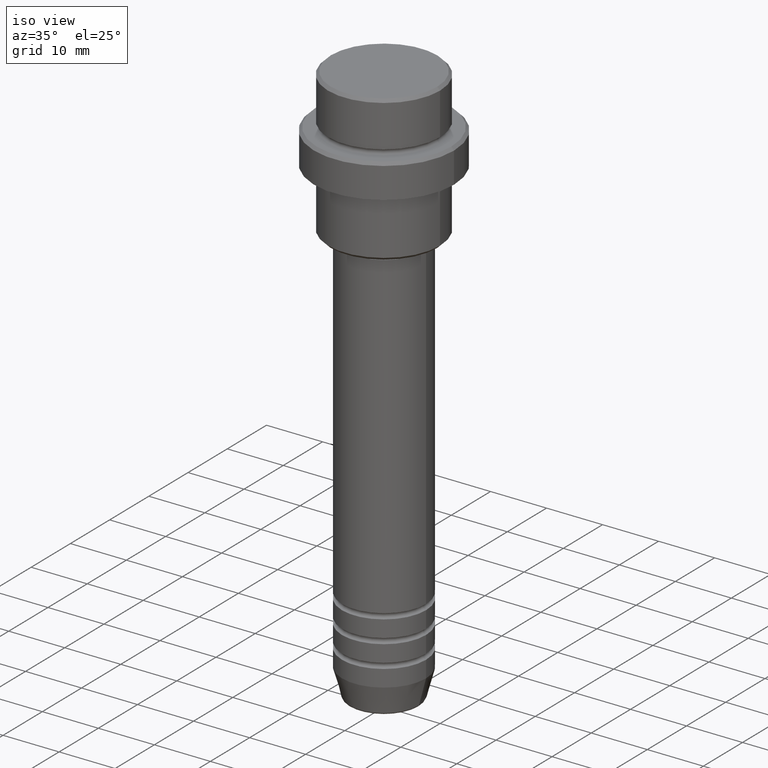
[diagram: clean part render]
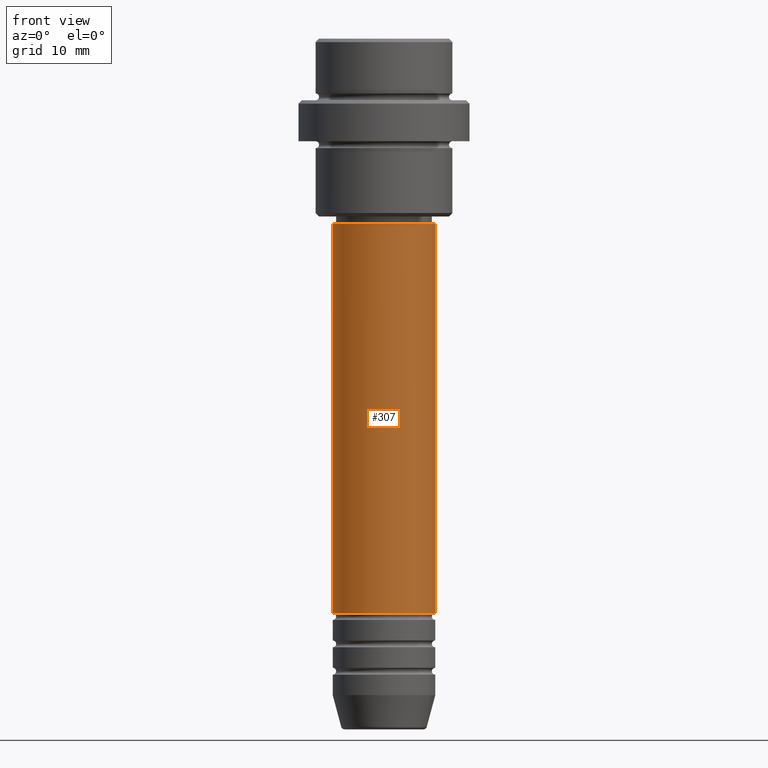
[diagram: tour spotlight — one face highlighted and labeled with its STEP entity id]
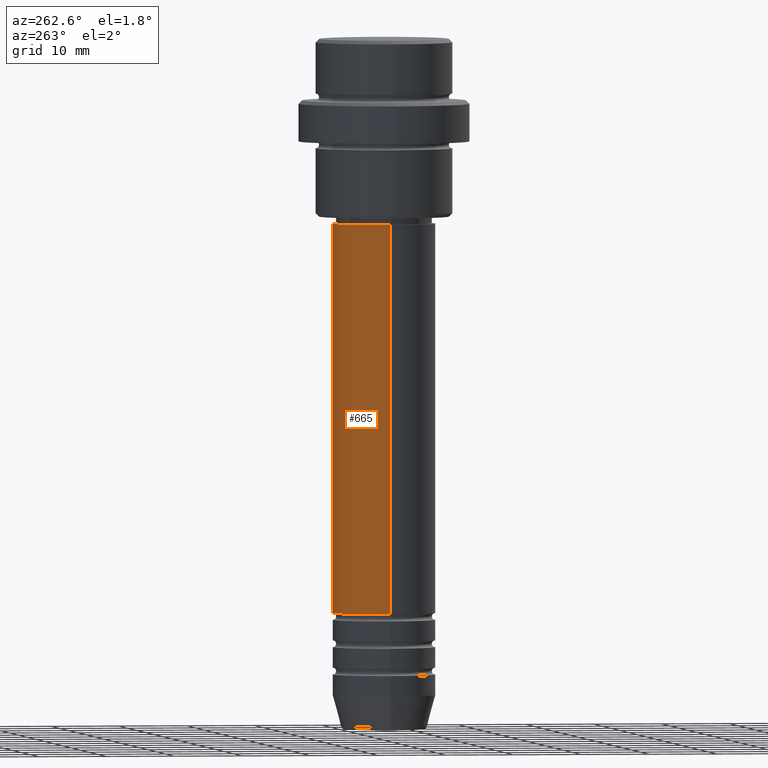
[diagram: tour spotlight — one face highlighted and labeled with its STEP entity id]
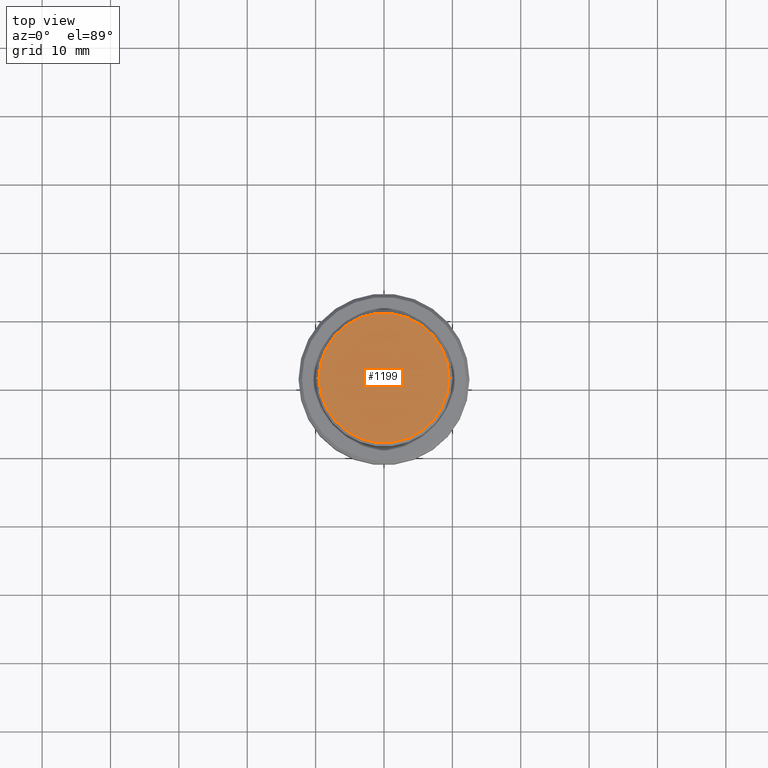
[diagram: tour spotlight — one face highlighted and labeled with its STEP entity id]
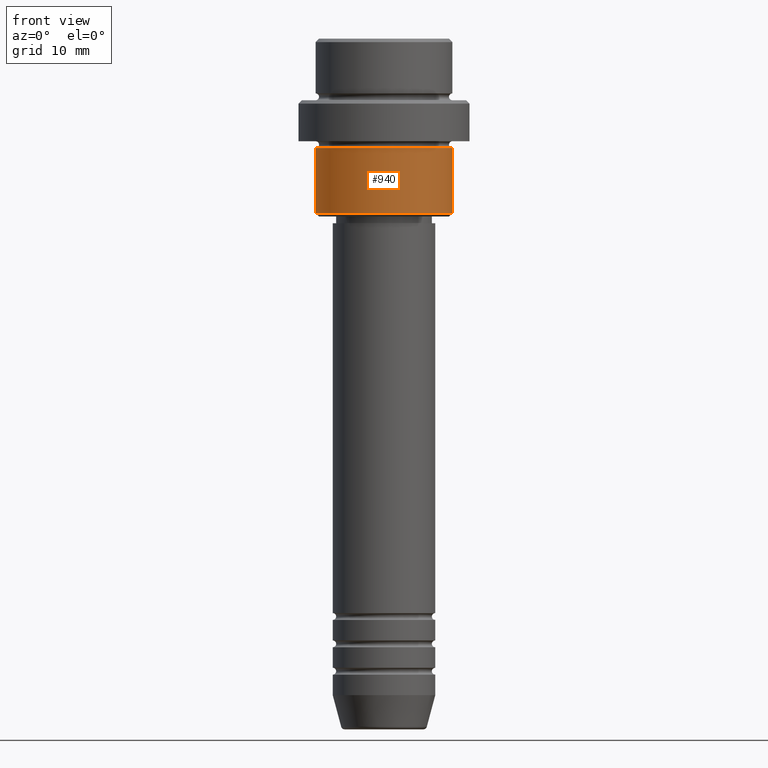
[diagram: tour spotlight — one face highlighted and labeled with its STEP entity id]
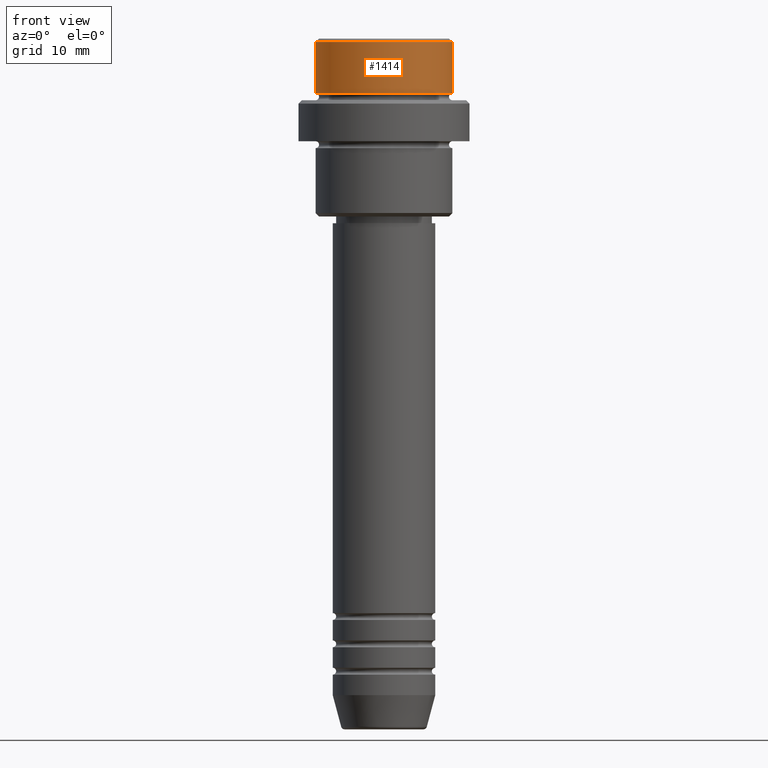
[diagram: tour spotlight — one face highlighted and labeled with its STEP entity id]
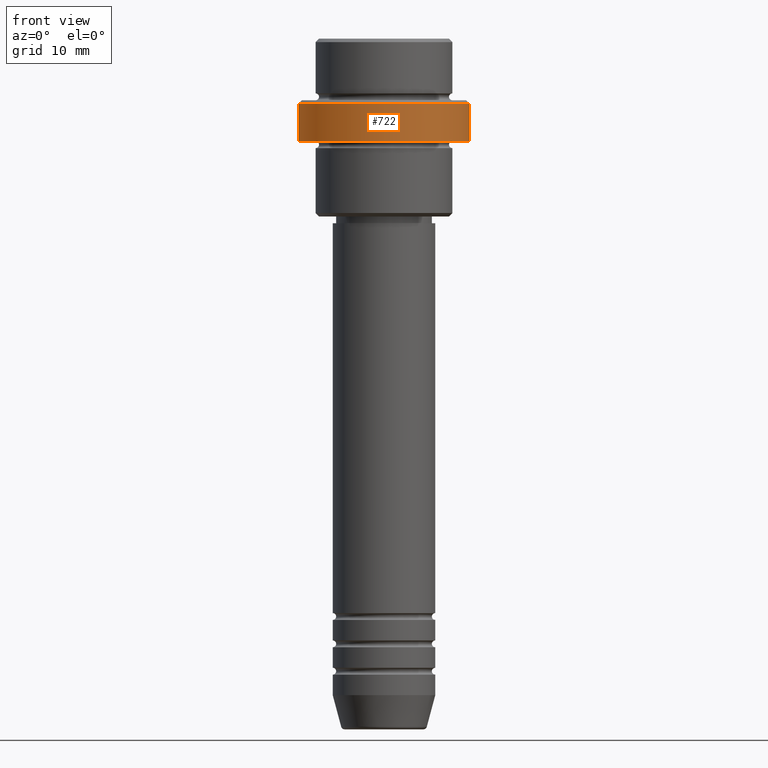
[diagram: tour spotlight — one face highlighted and labeled with its STEP entity id]
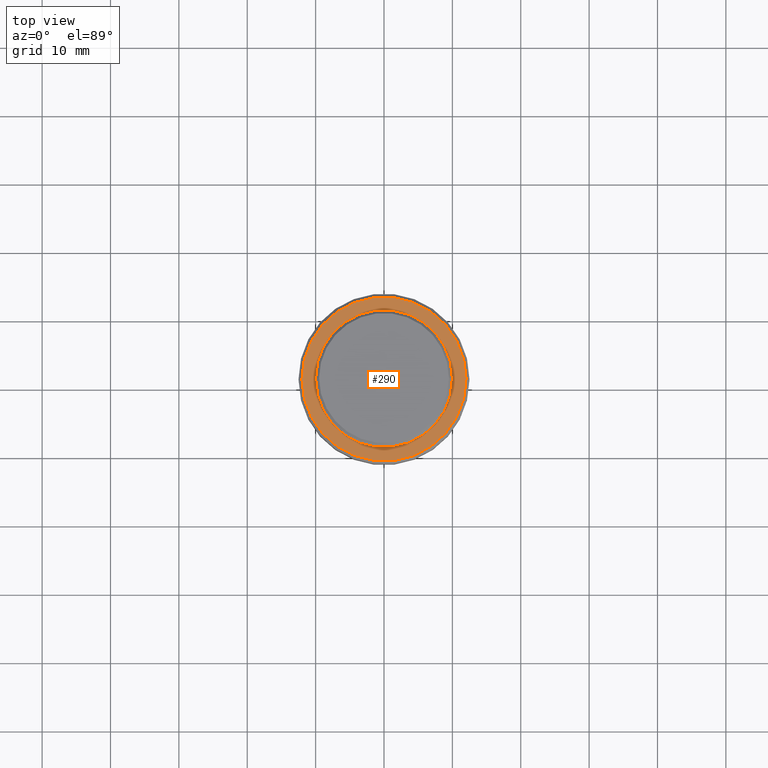
[diagram: tour spotlight — one face highlighted and labeled with its STEP entity id]
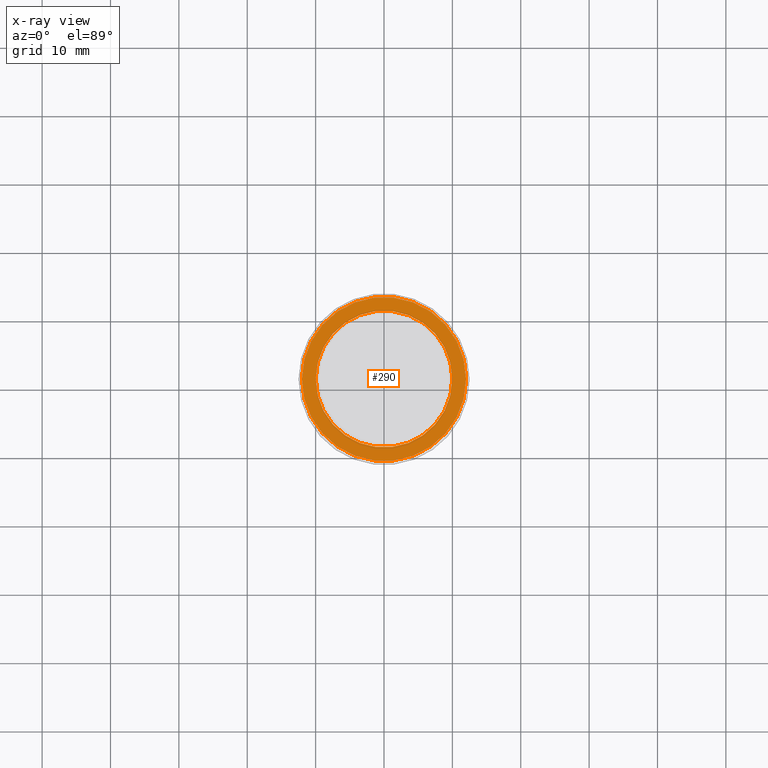
[diagram: x-ray of the same camera — body ghosted, this tour face saturated]
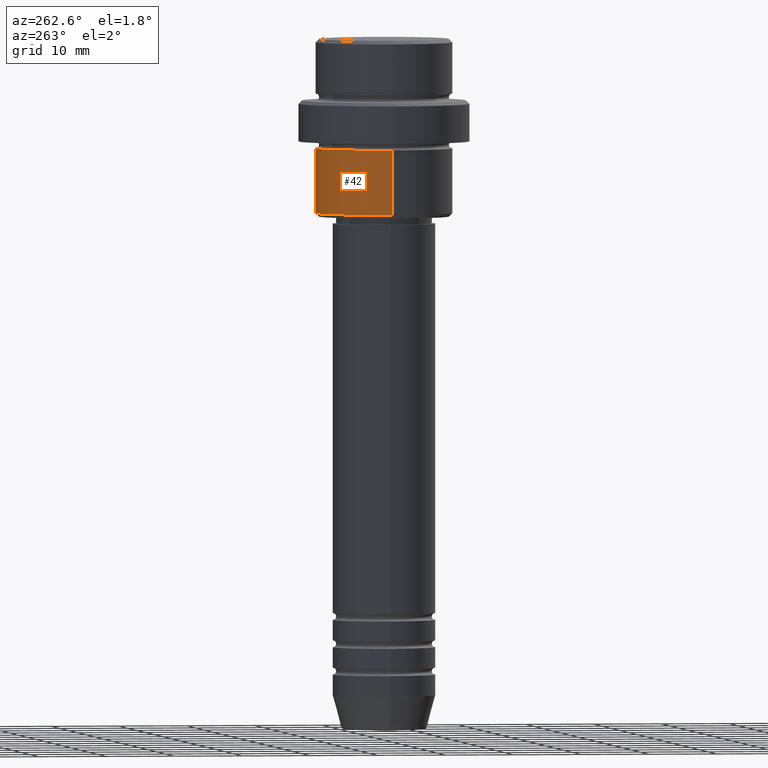
[diagram: tour spotlight — one face highlighted and labeled with its STEP entity id]
A machine part: a face-by-face anatomy tour. The part has 52 B-rep faces; the first image is the clean iso view, then the 8 largest visible faces are spotlighted one at a time (largest first), each with its STEP entity span.

Face 1 — front view, entity #307. In plain terms, the highlighted cylindrical surface (partial cylindrical patch) has radius 7.5 mm, axis along (-0, -0, 1).
Definition (entity closure, byte-faithful):
#11 = CARTESIAN_POINT ( 'NONE',  ( 0.000000000000000000, 0.000000000000000000, -83.99999999999988631 ) ) ;
#39 = DIRECTION ( 'NONE',  ( -0.000000000000000000, -0.000000000000000000, 1.000000000000000000 ) ) ;
#68 = AXIS2_PLACEMENT_3D ( 'NONE', #1016, #259, #272 ) ;
#80 = VERTEX_POINT ( 'NONE', #507 ) ;
#96 = DIRECTION ( 'NONE',  ( 1.000000000000000000, 0.000000000000000000, 0.000000000000000000 ) ) ;
#103 = EDGE_CURVE ( 'NONE', #1392, #80, #953, .T. ) ;
#164 = CIRCLE ( 'NONE', #634, 7.500000000000000000 ) ;
#186 = VERTEX_POINT ( 'NONE', #1060 ) ;
#202 = CYLINDRICAL_SURFACE ( 'NONE', #1351, 7.500000000000000000 ) ;
#259 = DIRECTION ( 'NONE',  ( -0.000000000000000000, -0.000000000000000000, 1.000000000000000000 ) ) ;
#261 = ORIENTED_EDGE ( 'NONE', *, *, #575, .T. ) ;
#272 = DIRECTION ( 'NONE',  ( 1.000000000000000000, 0.000000000000000000, 0.000000000000000000 ) ) ;
#298 = EDGE_CURVE ( 'NONE', #1189, #1392, #1050, .T. ) ;
#307 = ADVANCED_FACE ( 'NONE', ( #1175 ), #202, .T. ) ;
#320 = CARTESIAN_POINT ( 'NONE',  ( -7.500000000000000000, 9.184850993605147944E-16, -83.99999999999988631 ) ) ;
#368 = EDGE_CURVE ( 'NONE', #1189, #186, #164, .T. ) ;
#384 = CARTESIAN_POINT ( 'NONE',  ( 7.500000000000000000, 0.000000000000000000, 0.000000000000000000 ) ) ;
#507 = CARTESIAN_POINT ( 'NONE',  ( 7.500000000000000000, 0.000000000000000000, -26.99999999999998224 ) ) ;
#562 = ORIENTED_EDGE ( 'NONE', *, *, #298, .F. ) ;
#575 = EDGE_CURVE ( 'NONE', #186, #80, #1239, .T. ) ;
#584 = CARTESIAN_POINT ( 'NONE',  ( -7.500000000000000000, 9.184850993605147944E-16, -26.99999999999998224 ) ) ;
#634 = AXIS2_PLACEMENT_3D ( 'NONE', #11, #782, #1192 ) ;
#659 = EDGE_LOOP ( 'NONE', ( #562, #1383, #261, #1210 ) ) ;
#744 = CARTESIAN_POINT ( 'NONE',  ( -7.500000000000000000, 9.184850993605147944E-16, 0.000000000000000000 ) ) ;
#782 = DIRECTION ( 'NONE',  ( -0.000000000000000000, -0.000000000000000000, 1.000000000000000000 ) ) ;
#939 = DIRECTION ( 'NONE',  ( -0.000000000000000000, -0.000000000000000000, 1.000000000000000000 ) ) ;
#953 = CIRCLE ( 'NONE', #68, 7.500000000000000000 ) ;
#1016 = CARTESIAN_POINT ( 'NONE',  ( 0.000000000000000000, 0.000000000000000000, -26.99999999999998224 ) ) ;
#1050 = LINE ( 'NONE', #744, #1253 ) ;
#1060 = CARTESIAN_POINT ( 'NONE',  ( 7.500000000000000000, 0.000000000000000000, -83.99999999999988631 ) ) ;
#1069 = DIRECTION ( 'NONE',  ( -0.000000000000000000, -0.000000000000000000, 1.000000000000000000 ) ) ;
#1160 = VECTOR ( 'NONE', #39, 1000.000000000000000 ) ;
#1175 = FACE_OUTER_BOUND ( 'NONE', #659, .T. ) ;
#1189 = VERTEX_POINT ( 'NONE', #320 ) ;
#1192 = DIRECTION ( 'NONE',  ( 1.000000000000000000, 0.000000000000000000, 0.000000000000000000 ) ) ;
#1210 = ORIENTED_EDGE ( 'NONE', *, *, #103, .F. ) ;
#1239 = LINE ( 'NONE', #384, #1160 ) ;
#1253 = VECTOR ( 'NONE', #939, 1000.000000000000000 ) ;
#1351 = AXIS2_PLACEMENT_3D ( 'NONE', #1379, #1069, #96 ) ;
#1379 = CARTESIAN_POINT ( 'NONE',  ( 0.000000000000000000, 0.000000000000000000, 0.000000000000000000 ) ) ;
#1383 = ORIENTED_EDGE ( 'NONE', *, *, #368, .T. ) ;
#1392 = VERTEX_POINT ( 'NONE', #584 ) ;

Face 2 — auxiliary view, entity #665. In plain terms, the highlighted cylindrical surface (partial cylindrical patch) has radius 7.5 mm, axis along (-0, -0, 1).
Definition (entity closure, byte-faithful):
#26 = EDGE_CURVE ( 'NONE', #80, #1392, #1178, .T. ) ;
#39 = DIRECTION ( 'NONE',  ( -0.000000000000000000, -0.000000000000000000, 1.000000000000000000 ) ) ;
#43 = ORIENTED_EDGE ( 'NONE', *, *, #640, .T. ) ;
#80 = VERTEX_POINT ( 'NONE', #507 ) ;
#182 = AXIS2_PLACEMENT_3D ( 'NONE', #1337, #234, #900 ) ;
#186 = VERTEX_POINT ( 'NONE', #1060 ) ;
#194 = ORIENTED_EDGE ( 'NONE', *, *, #298, .T. ) ;
#215 = ORIENTED_EDGE ( 'NONE', *, *, #26, .F. ) ;
#224 = EDGE_LOOP ( 'NONE', ( #43, #194, #215, #1061 ) ) ;
#234 = DIRECTION ( 'NONE',  ( -0.000000000000000000, -0.000000000000000000, 1.000000000000000000 ) ) ;
#292 = CARTESIAN_POINT ( 'NONE',  ( 0.000000000000000000, 0.000000000000000000, 0.000000000000000000 ) ) ;
#297 = DIRECTION ( 'NONE',  ( 1.000000000000000000, 0.000000000000000000, 0.000000000000000000 ) ) ;
#298 = EDGE_CURVE ( 'NONE', #1189, #1392, #1050, .T. ) ;
#320 = CARTESIAN_POINT ( 'NONE',  ( -7.500000000000000000, 9.184850993605147944E-16, -83.99999999999988631 ) ) ;
#384 = CARTESIAN_POINT ( 'NONE',  ( 7.500000000000000000, 0.000000000000000000, 0.000000000000000000 ) ) ;
#434 = AXIS2_PLACEMENT_3D ( 'NONE', #1149, #1155, #845 ) ;
#507 = CARTESIAN_POINT ( 'NONE',  ( 7.500000000000000000, 0.000000000000000000, -26.99999999999998224 ) ) ;
#516 = FACE_OUTER_BOUND ( 'NONE', #224, .T. ) ;
#575 = EDGE_CURVE ( 'NONE', #186, #80, #1239, .T. ) ;
#584 = CARTESIAN_POINT ( 'NONE',  ( -7.500000000000000000, 9.184850993605147944E-16, -26.99999999999998224 ) ) ;
#640 = EDGE_CURVE ( 'NONE', #186, #1189, #864, .T. ) ;
#665 = ADVANCED_FACE ( 'NONE', ( #516 ), #1378, .T. ) ;
#736 = DIRECTION ( 'NONE',  ( -0.000000000000000000, -0.000000000000000000, 1.000000000000000000 ) ) ;
#744 = CARTESIAN_POINT ( 'NONE',  ( -7.500000000000000000, 9.184850993605147944E-16, 0.000000000000000000 ) ) ;
#845 = DIRECTION ( 'NONE',  ( 1.000000000000000000, 0.000000000000000000, 0.000000000000000000 ) ) ;
#864 = CIRCLE ( 'NONE', #434, 7.500000000000000000 ) ;
#900 = DIRECTION ( 'NONE',  ( 1.000000000000000000, 0.000000000000000000, 0.000000000000000000 ) ) ;
#939 = DIRECTION ( 'NONE',  ( -0.000000000000000000, -0.000000000000000000, 1.000000000000000000 ) ) ;
#1045 = AXIS2_PLACEMENT_3D ( 'NONE', #292, #736, #297 ) ;
#1050 = LINE ( 'NONE', #744, #1253 ) ;
#1060 = CARTESIAN_POINT ( 'NONE',  ( 7.500000000000000000, 0.000000000000000000, -83.99999999999988631 ) ) ;
#1061 = ORIENTED_EDGE ( 'NONE', *, *, #575, .F. ) ;
#1149 = CARTESIAN_POINT ( 'NONE',  ( 0.000000000000000000, 0.000000000000000000, -83.99999999999988631 ) ) ;
#1155 = DIRECTION ( 'NONE',  ( -0.000000000000000000, -0.000000000000000000, 1.000000000000000000 ) ) ;
#1160 = VECTOR ( 'NONE', #39, 1000.000000000000000 ) ;
#1178 = CIRCLE ( 'NONE', #182, 7.500000000000000000 ) ;
#1189 = VERTEX_POINT ( 'NONE', #320 ) ;
#1239 = LINE ( 'NONE', #384, #1160 ) ;
#1253 = VECTOR ( 'NONE', #939, 1000.000000000000000 ) ;
#1337 = CARTESIAN_POINT ( 'NONE',  ( 0.000000000000000000, 0.000000000000000000, -26.99999999999998224 ) ) ;
#1378 = CYLINDRICAL_SURFACE ( 'NONE', #1045, 7.500000000000000000 ) ;
#1392 = VERTEX_POINT ( 'NONE', #584 ) ;

Face 3 — top view, entity #1199. In plain terms, the highlighted planar face has unit normal (0, -0, 1).
Definition (entity closure, byte-faithful):
#5 = DIRECTION ( 'NONE',  ( -0.000000000000000000, -0.000000000000000000, 1.000000000000000000 ) ) ;
#8 = VERTEX_POINT ( 'NONE', #1001 ) ;
#95 = CARTESIAN_POINT ( 'NONE',  ( -9.499999999999994671, 0.000000000000000000, 0.000000000000000000 ) ) ;
#262 = CARTESIAN_POINT ( 'NONE',  ( 0.000000000000000000, 0.000000000000000000, 0.000000000000000000 ) ) ;
#282 = AXIS2_PLACEMENT_3D ( 'NONE', #826, #1002, #887 ) ;
#334 = EDGE_LOOP ( 'NONE', ( #1286, #1416 ) ) ;
#389 = PLANE ( 'NONE',  #282 ) ;
#395 = EDGE_CURVE ( 'NONE', #740, #8, #1323, .T. ) ;
#436 = CIRCLE ( 'NONE', #709, 9.499999999999994671 ) ;
#709 = AXIS2_PLACEMENT_3D ( 'NONE', #262, #811, #803 ) ;
#740 = VERTEX_POINT ( 'NONE', #95 ) ;
#767 = DIRECTION ( 'NONE',  ( 1.000000000000000000, 0.000000000000000000, 0.000000000000000000 ) ) ;
#773 = CARTESIAN_POINT ( 'NONE',  ( 0.000000000000000000, 0.000000000000000000, 0.000000000000000000 ) ) ;
#803 = DIRECTION ( 'NONE',  ( 1.000000000000000000, 0.000000000000000000, 0.000000000000000000 ) ) ;
#811 = DIRECTION ( 'NONE',  ( -0.000000000000000000, -0.000000000000000000, 1.000000000000000000 ) ) ;
#826 = CARTESIAN_POINT ( 'NONE',  ( 0.000000000000000000, 0.000000000000000000, 0.000000000000000000 ) ) ;
#887 = DIRECTION ( 'NONE',  ( 1.000000000000000000, 0.000000000000000000, 0.000000000000000000 ) ) ;
#922 = EDGE_CURVE ( 'NONE', #8, #740, #436, .T. ) ;
#955 = AXIS2_PLACEMENT_3D ( 'NONE', #773, #5, #767 ) ;
#1001 = CARTESIAN_POINT ( 'NONE',  ( 9.499999999999994671, 1.194030629168669075E-15, 0.000000000000000000 ) ) ;
#1002 = DIRECTION ( 'NONE',  ( 0.000000000000000000, -0.000000000000000000, 1.000000000000000000 ) ) ;
#1084 = FACE_OUTER_BOUND ( 'NONE', #334, .T. ) ;
#1199 = ADVANCED_FACE ( 'NONE', ( #1084 ), #389, .T. ) ;
#1286 = ORIENTED_EDGE ( 'NONE', *, *, #395, .T. ) ;
#1323 = CIRCLE ( 'NONE', #955, 9.499999999999994671 ) ;
#1416 = ORIENTED_EDGE ( 'NONE', *, *, #922, .T. ) ;

Face 4 — front view, entity #940. In plain terms, the highlighted cylindrical surface (partial cylindrical patch) has radius 10 mm, axis along (-0, -0, 1).
Definition (entity closure, byte-faithful):
#30 = VERTEX_POINT ( 'NONE', #663 ) ;
#65 = DIRECTION ( 'NONE',  ( -0.000000000000000000, -0.000000000000000000, 1.000000000000000000 ) ) ;
#111 = CARTESIAN_POINT ( 'NONE',  ( 10.00000000000000000, 0.000000000000000000, -25.50000000000000000 ) ) ;
#135 = VECTOR ( 'NONE', #1390, 1000.000000000000000 ) ;
#137 = CARTESIAN_POINT ( 'NONE',  ( 0.000000000000000000, 0.000000000000000000, 0.000000000000000000 ) ) ;
#192 = EDGE_CURVE ( 'NONE', #1150, #894, #524, .T. ) ;
#248 = VERTEX_POINT ( 'NONE', #1076 ) ;
#267 = DIRECTION ( 'NONE',  ( 1.000000000000000000, 0.000000000000000000, 0.000000000000000000 ) ) ;
#322 = ORIENTED_EDGE ( 'NONE', *, *, #192, .T. ) ;
#354 = CYLINDRICAL_SURFACE ( 'NONE', #1257, 10.00000000000000000 ) ;
#474 = FACE_OUTER_BOUND ( 'NONE', #1412, .T. ) ;
#524 = LINE ( 'NONE', #959, #135 ) ;
#613 = CARTESIAN_POINT ( 'NONE',  ( 0.000000000000000000, 0.000000000000000000, -25.50000000000000000 ) ) ;
#630 = ORIENTED_EDGE ( 'NONE', *, *, #1273, .F. ) ;
#657 = DIRECTION ( 'NONE',  ( -0.000000000000000000, -0.000000000000000000, 1.000000000000000000 ) ) ;
#663 = CARTESIAN_POINT ( 'NONE',  ( -10.00000000000000000, 1.224646799147353256E-15, -16.00000000000000000 ) ) ;
#682 = CIRCLE ( 'NONE', #1396, 10.00000000000000000 ) ;
#683 = DIRECTION ( 'NONE',  ( 1.000000000000000000, 0.000000000000000000, 0.000000000000000000 ) ) ;
#706 = CARTESIAN_POINT ( 'NONE',  ( 10.00000000000000000, 0.000000000000000000, -16.00000000000000000 ) ) ;
#726 = DIRECTION ( 'NONE',  ( -1.000000000000000000, 0.000000000000000000, 0.000000000000000000 ) ) ;
#784 = CARTESIAN_POINT ( 'NONE',  ( -10.00000000000000000, 1.224646799147353256E-15, 0.000000000000000000 ) ) ;
#827 = AXIS2_PLACEMENT_3D ( 'NONE', #905, #1237, #267 ) ;
#894 = VERTEX_POINT ( 'NONE', #706 ) ;
#904 = EDGE_CURVE ( 'NONE', #30, #894, #1090, .T. ) ;
#905 = CARTESIAN_POINT ( 'NONE',  ( 0.000000000000000000, 0.000000000000000000, -16.00000000000000000 ) ) ;
#940 = ADVANCED_FACE ( 'NONE', ( #474 ), #354, .T. ) ;
#959 = CARTESIAN_POINT ( 'NONE',  ( 10.00000000000000000, 0.000000000000000000, 0.000000000000000000 ) ) ;
#971 = ORIENTED_EDGE ( 'NONE', *, *, #1156, .T. ) ;
#1006 = DIRECTION ( 'NONE',  ( -0.000000000000000000, -0.000000000000000000, 1.000000000000000000 ) ) ;
#1076 = CARTESIAN_POINT ( 'NONE',  ( -10.00000000000000000, 1.224646799147353256E-15, -25.50000000000000000 ) ) ;
#1090 = CIRCLE ( 'NONE', #827, 10.00000000000000000 ) ;
#1150 = VERTEX_POINT ( 'NONE', #111 ) ;
#1156 = EDGE_CURVE ( 'NONE', #248, #1150, #682, .T. ) ;
#1237 = DIRECTION ( 'NONE',  ( -0.000000000000000000, -0.000000000000000000, 1.000000000000000000 ) ) ;
#1257 = AXIS2_PLACEMENT_3D ( 'NONE', #137, #1006, #683 ) ;
#1273 = EDGE_CURVE ( 'NONE', #248, #30, #1338, .T. ) ;
#1284 = VECTOR ( 'NONE', #657, 1000.000000000000000 ) ;
#1338 = LINE ( 'NONE', #784, #1284 ) ;
#1345 = ORIENTED_EDGE ( 'NONE', *, *, #904, .F. ) ;
#1390 = DIRECTION ( 'NONE',  ( -0.000000000000000000, -0.000000000000000000, 1.000000000000000000 ) ) ;
#1396 = AXIS2_PLACEMENT_3D ( 'NONE', #613, #65, #726 ) ;
#1412 = EDGE_LOOP ( 'NONE', ( #630, #971, #322, #1345 ) ) ;

Face 5 — front view, entity #1414. In plain terms, the highlighted cylindrical surface (partial cylindrical patch) has radius 10 mm, axis along (-0, -0, 1).
Definition (entity closure, byte-faithful):
#4 = VECTOR ( 'NONE', #485, 1000.000000000000000 ) ;
#60 = EDGE_CURVE ( 'NONE', #515, #851, #299, .T. ) ;
#78 = LINE ( 'NONE', #518, #1135 ) ;
#97 = VERTEX_POINT ( 'NONE', #599 ) ;
#104 = EDGE_LOOP ( 'NONE', ( #1387, #160, #205, #690 ) ) ;
#160 = ORIENTED_EDGE ( 'NONE', *, *, #60, .T. ) ;
#198 = EDGE_CURVE ( 'NONE', #515, #492, #78, .T. ) ;
#205 = ORIENTED_EDGE ( 'NONE', *, *, #1404, .T. ) ;
#277 = FACE_OUTER_BOUND ( 'NONE', #104, .T. ) ;
#281 = DIRECTION ( 'NONE',  ( 1.000000000000000000, 0.000000000000000000, 0.000000000000000000 ) ) ;
#299 = CIRCLE ( 'NONE', #702, 9.999999999999998224 ) ;
#461 = AXIS2_PLACEMENT_3D ( 'NONE', #710, #918, #496 ) ;
#476 = CYLINDRICAL_SURFACE ( 'NONE', #461, 9.999999999999998224 ) ;
#483 = CARTESIAN_POINT ( 'NONE',  ( -9.999999999999998224, 1.224646799147353059E-15, -0.4999999999999970024 ) ) ;
#485 = DIRECTION ( 'NONE',  ( -0.000000000000000000, -0.000000000000000000, 1.000000000000000000 ) ) ;
#492 = VERTEX_POINT ( 'NONE', #483 ) ;
#496 = DIRECTION ( 'NONE',  ( 1.000000000000000000, 0.000000000000000000, 0.000000000000000000 ) ) ;
#515 = VERTEX_POINT ( 'NONE', #1119 ) ;
#518 = CARTESIAN_POINT ( 'NONE',  ( -9.999999999999998224, 1.224646799147353059E-15, 0.000000000000000000 ) ) ;
#559 = CARTESIAN_POINT ( 'NONE',  ( 9.999999999999998224, 0.000000000000000000, -7.999999999999998224 ) ) ;
#599 = CARTESIAN_POINT ( 'NONE',  ( 9.999999999999998224, 0.000000000000000000, -0.4999999999999970024 ) ) ;
#624 = DIRECTION ( 'NONE',  ( -0.000000000000000000, -0.000000000000000000, 1.000000000000000000 ) ) ;
#690 = ORIENTED_EDGE ( 'NONE', *, *, #1218, .T. ) ;
#702 = AXIS2_PLACEMENT_3D ( 'NONE', #1134, #1367, #281 ) ;
#710 = CARTESIAN_POINT ( 'NONE',  ( 0.000000000000000000, 0.000000000000000000, 0.000000000000000000 ) ) ;
#796 = CARTESIAN_POINT ( 'NONE',  ( 9.999999999999998224, 0.000000000000000000, 0.000000000000000000 ) ) ;
#798 = DIRECTION ( 'NONE',  ( 1.000000000000000000, 0.000000000000000000, 0.000000000000000000 ) ) ;
#851 = VERTEX_POINT ( 'NONE', #559 ) ;
#895 = CARTESIAN_POINT ( 'NONE',  ( 0.000000000000000000, 0.000000000000000000, -0.4999999999999970024 ) ) ;
#918 = DIRECTION ( 'NONE',  ( -0.000000000000000000, -0.000000000000000000, 1.000000000000000000 ) ) ;
#1067 = CIRCLE ( 'NONE', #1184, 9.999999999999998224 ) ;
#1119 = CARTESIAN_POINT ( 'NONE',  ( -9.999999999999998224, 1.224646799147353059E-15, -7.999999999999998224 ) ) ;
#1134 = CARTESIAN_POINT ( 'NONE',  ( 0.000000000000000000, 0.000000000000000000, -7.999999999999998224 ) ) ;
#1135 = VECTOR ( 'NONE', #624, 1000.000000000000000 ) ;
#1184 = AXIS2_PLACEMENT_3D ( 'NONE', #895, #1211, #798 ) ;
#1211 = DIRECTION ( 'NONE',  ( 0.000000000000000000, 0.000000000000000000, -1.000000000000000000 ) ) ;
#1218 = EDGE_CURVE ( 'NONE', #97, #492, #1067, .T. ) ;
#1250 = LINE ( 'NONE', #796, #4 ) ;
#1367 = DIRECTION ( 'NONE',  ( -0.000000000000000000, -0.000000000000000000, 1.000000000000000000 ) ) ;
#1387 = ORIENTED_EDGE ( 'NONE', *, *, #198, .F. ) ;
#1404 = EDGE_CURVE ( 'NONE', #851, #97, #1250, .T. ) ;
#1414 = ADVANCED_FACE ( 'NONE', ( #277 ), #476, .T. ) ;

Face 6 — front view, entity #722. In plain terms, the highlighted cylindrical surface (partial cylindrical patch) has radius 12.5 mm, axis along (-0, -0, 1).
Definition (entity closure, byte-faithful):
#28 = ORIENTED_EDGE ( 'NONE', *, *, #407, .T. ) ;
#114 = CIRCLE ( 'NONE', #390, 12.50000000000000000 ) ;
#195 = CYLINDRICAL_SURFACE ( 'NONE', #801, 12.50000000000000000 ) ;
#204 = AXIS2_PLACEMENT_3D ( 'NONE', #675, #338, #892 ) ;
#212 = CARTESIAN_POINT ( 'NONE',  ( 12.50000000000000000, 0.000000000000000000, -15.00000000000000178 ) ) ;
#233 = DIRECTION ( 'NONE',  ( -0.000000000000000000, -0.000000000000000000, 1.000000000000000000 ) ) ;
#244 = DIRECTION ( 'NONE',  ( 1.000000000000000000, 0.000000000000000000, 0.000000000000000000 ) ) ;
#302 = VECTOR ( 'NONE', #1214, 1000.000000000000000 ) ;
#330 = VERTEX_POINT ( 'NONE', #212 ) ;
#331 = EDGE_CURVE ( 'NONE', #590, #748, #355, .T. ) ;
#338 = DIRECTION ( 'NONE',  ( 0.000000000000000000, 0.000000000000000000, -1.000000000000000000 ) ) ;
#350 = EDGE_CURVE ( 'NONE', #1195, #748, #1325, .T. ) ;
#355 = LINE ( 'NONE', #876, #1064 ) ;
#362 = CARTESIAN_POINT ( 'NONE',  ( -12.50000000000000000, 1.530808498934191521E-15, -15.00000000000000178 ) ) ;
#390 = AXIS2_PLACEMENT_3D ( 'NONE', #1318, #233, #244 ) ;
#407 = EDGE_CURVE ( 'NONE', #590, #330, #114, .T. ) ;
#542 = LINE ( 'NONE', #1302, #302 ) ;
#569 = EDGE_LOOP ( 'NONE', ( #840, #28, #1100, #770 ) ) ;
#590 = VERTEX_POINT ( 'NONE', #362 ) ;
#627 = CARTESIAN_POINT ( 'NONE',  ( 0.000000000000000000, 0.000000000000000000, 0.000000000000000000 ) ) ;
#649 = CARTESIAN_POINT ( 'NONE',  ( 12.50000000000000000, 0.000000000000000000, -9.499999999999992895 ) ) ;
#662 = DIRECTION ( 'NONE',  ( -0.000000000000000000, -0.000000000000000000, 1.000000000000000000 ) ) ;
#668 = CARTESIAN_POINT ( 'NONE',  ( -12.50000000000000000, 1.530808498934191521E-15, -9.499999999999992895 ) ) ;
#675 = CARTESIAN_POINT ( 'NONE',  ( 0.000000000000000000, 0.000000000000000000, -9.499999999999992895 ) ) ;
#722 = ADVANCED_FACE ( 'NONE', ( #1267 ), #195, .T. ) ;
#748 = VERTEX_POINT ( 'NONE', #668 ) ;
#770 = ORIENTED_EDGE ( 'NONE', *, *, #350, .T. ) ;
#801 = AXIS2_PLACEMENT_3D ( 'NONE', #627, #1288, #1173 ) ;
#837 = EDGE_CURVE ( 'NONE', #330, #1195, #542, .T. ) ;
#840 = ORIENTED_EDGE ( 'NONE', *, *, #331, .F. ) ;
#876 = CARTESIAN_POINT ( 'NONE',  ( -12.50000000000000000, 1.530808498934191521E-15, 0.000000000000000000 ) ) ;
#892 = DIRECTION ( 'NONE',  ( 1.000000000000000000, 0.000000000000000000, 0.000000000000000000 ) ) ;
#1064 = VECTOR ( 'NONE', #662, 1000.000000000000000 ) ;
#1100 = ORIENTED_EDGE ( 'NONE', *, *, #837, .T. ) ;
#1173 = DIRECTION ( 'NONE',  ( 1.000000000000000000, 0.000000000000000000, 0.000000000000000000 ) ) ;
#1195 = VERTEX_POINT ( 'NONE', #649 ) ;
#1214 = DIRECTION ( 'NONE',  ( -0.000000000000000000, -0.000000000000000000, 1.000000000000000000 ) ) ;
#1267 = FACE_OUTER_BOUND ( 'NONE', #569, .T. ) ;
#1288 = DIRECTION ( 'NONE',  ( -0.000000000000000000, -0.000000000000000000, 1.000000000000000000 ) ) ;
#1302 = CARTESIAN_POINT ( 'NONE',  ( 12.50000000000000000, 0.000000000000000000, 0.000000000000000000 ) ) ;
#1318 = CARTESIAN_POINT ( 'NONE',  ( 0.000000000000000000, 0.000000000000000000, -15.00000000000000178 ) ) ;
#1325 = CIRCLE ( 'NONE', #204, 12.50000000000000000 ) ;

Face 7 — top view, entity #290. An x-ray twin of the same camera follows (body ghosted, this face saturated) — the face is partly hidden behind the body. In plain terms, the highlighted planar face has unit normal (0, -0, 1).
Definition (entity closure, byte-faithful):
#112 = AXIS2_PLACEMENT_3D ( 'NONE', #724, #1285, #641 ) ;
#120 = VERTEX_POINT ( 'NONE', #821 ) ;
#169 = EDGE_CURVE ( 'NONE', #366, #120, #1109, .T. ) ;
#183 = FACE_BOUND ( 'NONE', #1043, .T. ) ;
#208 = EDGE_CURVE ( 'NONE', #120, #366, #454, .T. ) ;
#211 = DIRECTION ( 'NONE',  ( -0.000000000000000000, -0.000000000000000000, 1.000000000000000000 ) ) ;
#245 = CARTESIAN_POINT ( 'NONE',  ( 12.00000000000001066, 1.500192328955508326E-15, -9.000000000000001776 ) ) ;
#290 = ADVANCED_FACE ( 'NONE', ( #732, #183 ), #312, .T. ) ;
#312 = PLANE ( 'NONE',  #1112 ) ;
#366 = VERTEX_POINT ( 'NONE', #871 ) ;
#377 = CARTESIAN_POINT ( 'NONE',  ( -12.00000000000001066, 0.000000000000000000, -9.000000000000001776 ) ) ;
#398 = DIRECTION ( 'NONE',  ( -0.000000000000000000, -0.000000000000000000, 1.000000000000000000 ) ) ;
#454 = CIRCLE ( 'NONE', #112, 9.999999999999994671 ) ;
#457 = CIRCLE ( 'NONE', #1026, 12.00000000000001066 ) ;
#570 = AXIS2_PLACEMENT_3D ( 'NONE', #609, #398, #1168 ) ;
#609 = CARTESIAN_POINT ( 'NONE',  ( 0.000000000000000000, 0.000000000000000000, -9.000000000000001776 ) ) ;
#620 = CARTESIAN_POINT ( 'NONE',  ( 0.000000000000000000, 9.499999999999994671, -9.000000000000001776 ) ) ;
#641 = DIRECTION ( 'NONE',  ( 1.000000000000000000, 0.000000000000000000, 0.000000000000000000 ) ) ;
#714 = EDGE_CURVE ( 'NONE', #1368, #1408, #730, .T. ) ;
#724 = CARTESIAN_POINT ( 'NONE',  ( 0.000000000000000000, 0.000000000000000000, -9.000000000000001776 ) ) ;
#727 = AXIS2_PLACEMENT_3D ( 'NONE', #930, #1262, #1343 ) ;
#730 = CIRCLE ( 'NONE', #570, 12.00000000000001066 ) ;
#732 = FACE_OUTER_BOUND ( 'NONE', #888, .T. ) ;
#793 = EDGE_CURVE ( 'NONE', #1408, #1368, #457, .T. ) ;
#800 = ORIENTED_EDGE ( 'NONE', *, *, #169, .T. ) ;
#821 = CARTESIAN_POINT ( 'NONE',  ( 9.999999999999994671, 0.000000000000000000, -9.000000000000001776 ) ) ;
#823 = ORIENTED_EDGE ( 'NONE', *, *, #793, .T. ) ;
#849 = DIRECTION ( 'NONE',  ( 0.000000000000000000, -0.000000000000000000, 1.000000000000000000 ) ) ;
#871 = CARTESIAN_POINT ( 'NONE',  ( -9.999999999999994671, 1.224646799147352665E-15, -9.000000000000001776 ) ) ;
#888 = EDGE_LOOP ( 'NONE', ( #1037, #823 ) ) ;
#930 = CARTESIAN_POINT ( 'NONE',  ( 0.000000000000000000, 0.000000000000000000, -9.000000000000001776 ) ) ;
#968 = DIRECTION ( 'NONE',  ( 1.000000000000000000, 0.000000000000000000, 0.000000000000000000 ) ) ;
#1026 = AXIS2_PLACEMENT_3D ( 'NONE', #1316, #211, #968 ) ;
#1037 = ORIENTED_EDGE ( 'NONE', *, *, #714, .T. ) ;
#1043 = EDGE_LOOP ( 'NONE', ( #1394, #800 ) ) ;
#1054 = DIRECTION ( 'NONE',  ( 1.000000000000000000, 0.000000000000000000, 0.000000000000000000 ) ) ;
#1109 = CIRCLE ( 'NONE', #727, 9.999999999999994671 ) ;
#1112 = AXIS2_PLACEMENT_3D ( 'NONE', #620, #849, #1054 ) ;
#1168 = DIRECTION ( 'NONE',  ( 1.000000000000000000, 0.000000000000000000, 0.000000000000000000 ) ) ;
#1262 = DIRECTION ( 'NONE',  ( 0.000000000000000000, 0.000000000000000000, -1.000000000000000000 ) ) ;
#1285 = DIRECTION ( 'NONE',  ( 0.000000000000000000, 0.000000000000000000, -1.000000000000000000 ) ) ;
#1316 = CARTESIAN_POINT ( 'NONE',  ( 0.000000000000000000, 0.000000000000000000, -9.000000000000001776 ) ) ;
#1343 = DIRECTION ( 'NONE',  ( 1.000000000000000000, 0.000000000000000000, 0.000000000000000000 ) ) ;
#1368 = VERTEX_POINT ( 'NONE', #377 ) ;
#1394 = ORIENTED_EDGE ( 'NONE', *, *, #208, .T. ) ;
#1408 = VERTEX_POINT ( 'NONE', #245 ) ;

Face 8 — auxiliary view, entity #42. In plain terms, the highlighted cylindrical surface (partial cylindrical patch) has radius 10 mm, axis along (-0, -0, 1).
Definition (entity closure, byte-faithful):
#18 = EDGE_LOOP ( 'NONE', ( #52, #735, #313, #125 ) ) ;
#30 = VERTEX_POINT ( 'NONE', #663 ) ;
#35 = CYLINDRICAL_SURFACE ( 'NONE', #367, 10.00000000000000000 ) ;
#42 = ADVANCED_FACE ( 'NONE', ( #762 ), #35, .T. ) ;
#52 = ORIENTED_EDGE ( 'NONE', *, *, #1297, .T. ) ;
#111 = CARTESIAN_POINT ( 'NONE',  ( 10.00000000000000000, 0.000000000000000000, -25.50000000000000000 ) ) ;
#118 = CIRCLE ( 'NONE', #598, 10.00000000000000000 ) ;
#125 = ORIENTED_EDGE ( 'NONE', *, *, #192, .F. ) ;
#135 = VECTOR ( 'NONE', #1390, 1000.000000000000000 ) ;
#180 = CARTESIAN_POINT ( 'NONE',  ( 0.000000000000000000, 0.000000000000000000, -16.00000000000000000 ) ) ;
#192 = EDGE_CURVE ( 'NONE', #1150, #894, #524, .T. ) ;
#235 = CARTESIAN_POINT ( 'NONE',  ( 0.000000000000000000, 0.000000000000000000, -25.50000000000000000 ) ) ;
#248 = VERTEX_POINT ( 'NONE', #1076 ) ;
#313 = ORIENTED_EDGE ( 'NONE', *, *, #618, .F. ) ;
#335 = DIRECTION ( 'NONE',  ( -0.000000000000000000, -0.000000000000000000, 1.000000000000000000 ) ) ;
#367 = AXIS2_PLACEMENT_3D ( 'NONE', #979, #469, #1193 ) ;
#469 = DIRECTION ( 'NONE',  ( -0.000000000000000000, -0.000000000000000000, 1.000000000000000000 ) ) ;
#524 = LINE ( 'NONE', #959, #135 ) ;
#598 = AXIS2_PLACEMENT_3D ( 'NONE', #235, #335, #1105 ) ;
#617 = CIRCLE ( 'NONE', #1395, 10.00000000000000000 ) ;
#618 = EDGE_CURVE ( 'NONE', #894, #30, #617, .T. ) ;
#657 = DIRECTION ( 'NONE',  ( -0.000000000000000000, -0.000000000000000000, 1.000000000000000000 ) ) ;
#663 = CARTESIAN_POINT ( 'NONE',  ( -10.00000000000000000, 1.224646799147353256E-15, -16.00000000000000000 ) ) ;
#706 = CARTESIAN_POINT ( 'NONE',  ( 10.00000000000000000, 0.000000000000000000, -16.00000000000000000 ) ) ;
#735 = ORIENTED_EDGE ( 'NONE', *, *, #1273, .T. ) ;
#762 = FACE_OUTER_BOUND ( 'NONE', #18, .T. ) ;
#784 = CARTESIAN_POINT ( 'NONE',  ( -10.00000000000000000, 1.224646799147353256E-15, 0.000000000000000000 ) ) ;
#894 = VERTEX_POINT ( 'NONE', #706 ) ;
#959 = CARTESIAN_POINT ( 'NONE',  ( 10.00000000000000000, 0.000000000000000000, 0.000000000000000000 ) ) ;
#979 = CARTESIAN_POINT ( 'NONE',  ( 0.000000000000000000, 0.000000000000000000, 0.000000000000000000 ) ) ;
#1039 = DIRECTION ( 'NONE',  ( -0.000000000000000000, -0.000000000000000000, 1.000000000000000000 ) ) ;
#1076 = CARTESIAN_POINT ( 'NONE',  ( -10.00000000000000000, 1.224646799147353256E-15, -25.50000000000000000 ) ) ;
#1105 = DIRECTION ( 'NONE',  ( -1.000000000000000000, 0.000000000000000000, 0.000000000000000000 ) ) ;
#1150 = VERTEX_POINT ( 'NONE', #111 ) ;
#1193 = DIRECTION ( 'NONE',  ( 1.000000000000000000, 0.000000000000000000, 0.000000000000000000 ) ) ;
#1273 = EDGE_CURVE ( 'NONE', #248, #30, #1338, .T. ) ;
#1284 = VECTOR ( 'NONE', #657, 1000.000000000000000 ) ;
#1297 = EDGE_CURVE ( 'NONE', #1150, #248, #118, .T. ) ;
#1338 = LINE ( 'NONE', #784, #1284 ) ;
#1390 = DIRECTION ( 'NONE',  ( -0.000000000000000000, -0.000000000000000000, 1.000000000000000000 ) ) ;
#1395 = AXIS2_PLACEMENT_3D ( 'NONE', #180, #1039, #1397 ) ;
#1397 = DIRECTION ( 'NONE',  ( 1.000000000000000000, 0.000000000000000000, 0.000000000000000000 ) ) ;